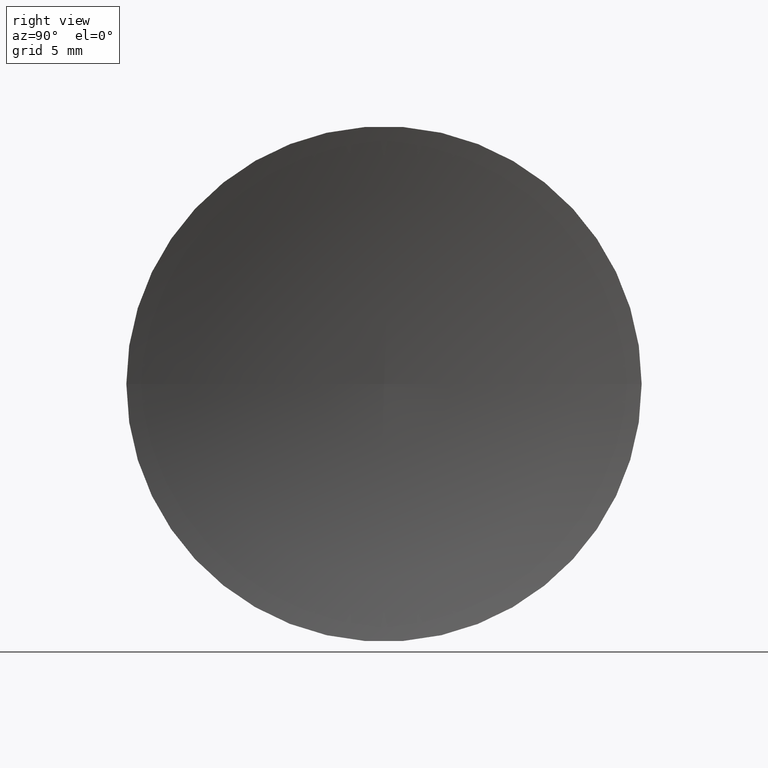
[diagram: clean part render]
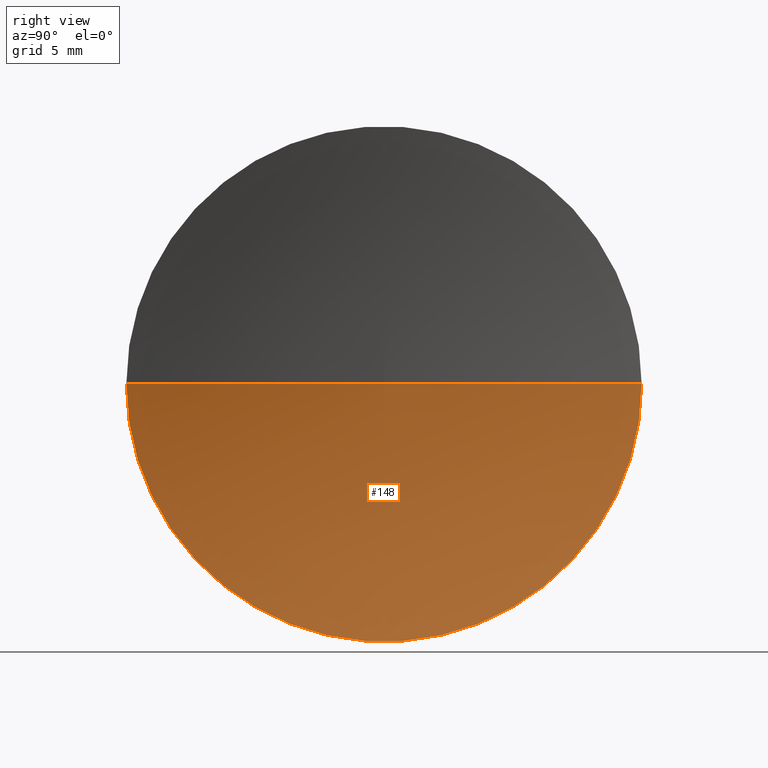
[diagram: same view with one face highlighted and labeled with its STEP entity id]
A machine part, right view. The second image highlights one B-rep face of the part: STEP entity #148.
In plain terms, the highlighted toroidal blend (fillet) surface has major radius 0.0021 mm and minor (blend) radius 51.64 mm.
Its self-contained STEP definition (entity closure, byte-faithful):
#5 = ORIENTED_EDGE ( 'NONE', *, *, #38, .F. ) ;
#7 = CARTESIAN_POINT ( 'NONE',  ( 110.9981901286809900, 32.57659115087562200, -2.614329961451197500E-019 ) ) ;
#11 = AXIS2_PLACEMENT_3D ( 'NONE', #7, #81, #149 ) ;
#24 = CIRCLE ( 'NONE', #11, 51.64000000000000800 ) ;
#28 = CIRCLE ( 'NONE', #152, 12.50000000000000400 ) ;
#35 = CARTESIAN_POINT ( 'NONE',  ( 60.89443551505594600, 45.07872591329309800, 1.530808498934192300E-015 ) ) ;
#37 = ORIENTED_EDGE ( 'NONE', *, *, #102, .F. ) ;
#38 = EDGE_CURVE ( 'NONE', #94, #109, #87, .T. ) ;
#41 = CARTESIAN_POINT ( 'NONE',  ( 110.9981901286809900, 32.58086067571049000, 0.0000000000000000000 ) ) ;
#50 = DIRECTION ( 'NONE',  ( -5.551115123125780700E-016, -1.000000000000000000, 0.0000000000000000000 ) ) ;
#52 = CARTESIAN_POINT ( 'NONE',  ( 60.89443551505593200, 20.07872591329308100, 0.0000000000000000000 ) ) ;
#54 = CARTESIAN_POINT ( 'NONE',  ( 59.35819017280580600, 32.57872591329309800, 0.0000000000000000000 ) ) ;
#60 = EDGE_LOOP ( 'NONE', ( #37, #160, #5 ) ) ;
#62 = AXIS2_PLACEMENT_3D ( 'NONE', #124, #151, #70 ) ;
#67 = DIRECTION ( 'NONE',  ( -1.000000000000000000, 0.0000000000000000000, 0.0000000000000000000 ) ) ;
#68 = DIRECTION ( 'NONE',  ( -1.000000000000000000, 7.636108817321419600E-016, -0.0000000000000000000 ) ) ;
#70 = DIRECTION ( 'NONE',  ( -7.636108817321419600E-016, -1.000000000000000000, 0.0000000000000000000 ) ) ;
#81 = DIRECTION ( 'NONE',  ( -9.351536221073556900E-032, -1.224646799147353200E-016, 1.000000000000000000 ) ) ;
#87 = CIRCLE ( 'NONE', #126, 51.64000000000000800 ) ;
#88 = TOROIDAL_SURFACE ( 'NONE', #62, -0.002134762417434476400, 51.64000000000000800 ) ;
#94 = VERTEX_POINT ( 'NONE', #52 ) ;
#102 = EDGE_CURVE ( 'NONE', #135, #94, #28, .T. ) ;
#109 = VERTEX_POINT ( 'NONE', #54 ) ;
#110 = EDGE_CURVE ( 'NONE', #135, #109, #24, .T. ) ;
#120 = CARTESIAN_POINT ( 'NONE',  ( 60.89443551505593900, 32.57872591329309100, 0.0000000000000000000 ) ) ;
#124 = CARTESIAN_POINT ( 'NONE',  ( 110.9981901286809900, 32.57872591329305600, 0.0000000000000000000 ) ) ;
#126 = AXIS2_PLACEMENT_3D ( 'NONE', #41, #140, #67 ) ;
#135 = VERTEX_POINT ( 'NONE', #35 ) ;
#140 = DIRECTION ( 'NONE',  ( 0.0000000000000000000, -0.0000000000000000000, -1.000000000000000000 ) ) ;
#148 = ADVANCED_FACE ( 'NONE', ( #166 ), #88, .F. ) ;
#149 = DIRECTION ( 'NONE',  ( 0.0000000000000000000, -1.000000000000000000, -1.224646799147353200E-016 ) ) ;
#151 = DIRECTION ( 'NONE',  ( -1.000000000000000000, 7.636108817321419600E-016, -0.0000000000000000000 ) ) ;
#152 = AXIS2_PLACEMENT_3D ( 'NONE', #120, #68, #50 ) ;
#160 = ORIENTED_EDGE ( 'NONE', *, *, #110, .T. ) ;
#166 = FACE_OUTER_BOUND ( 'NONE', #60, .T. ) ;